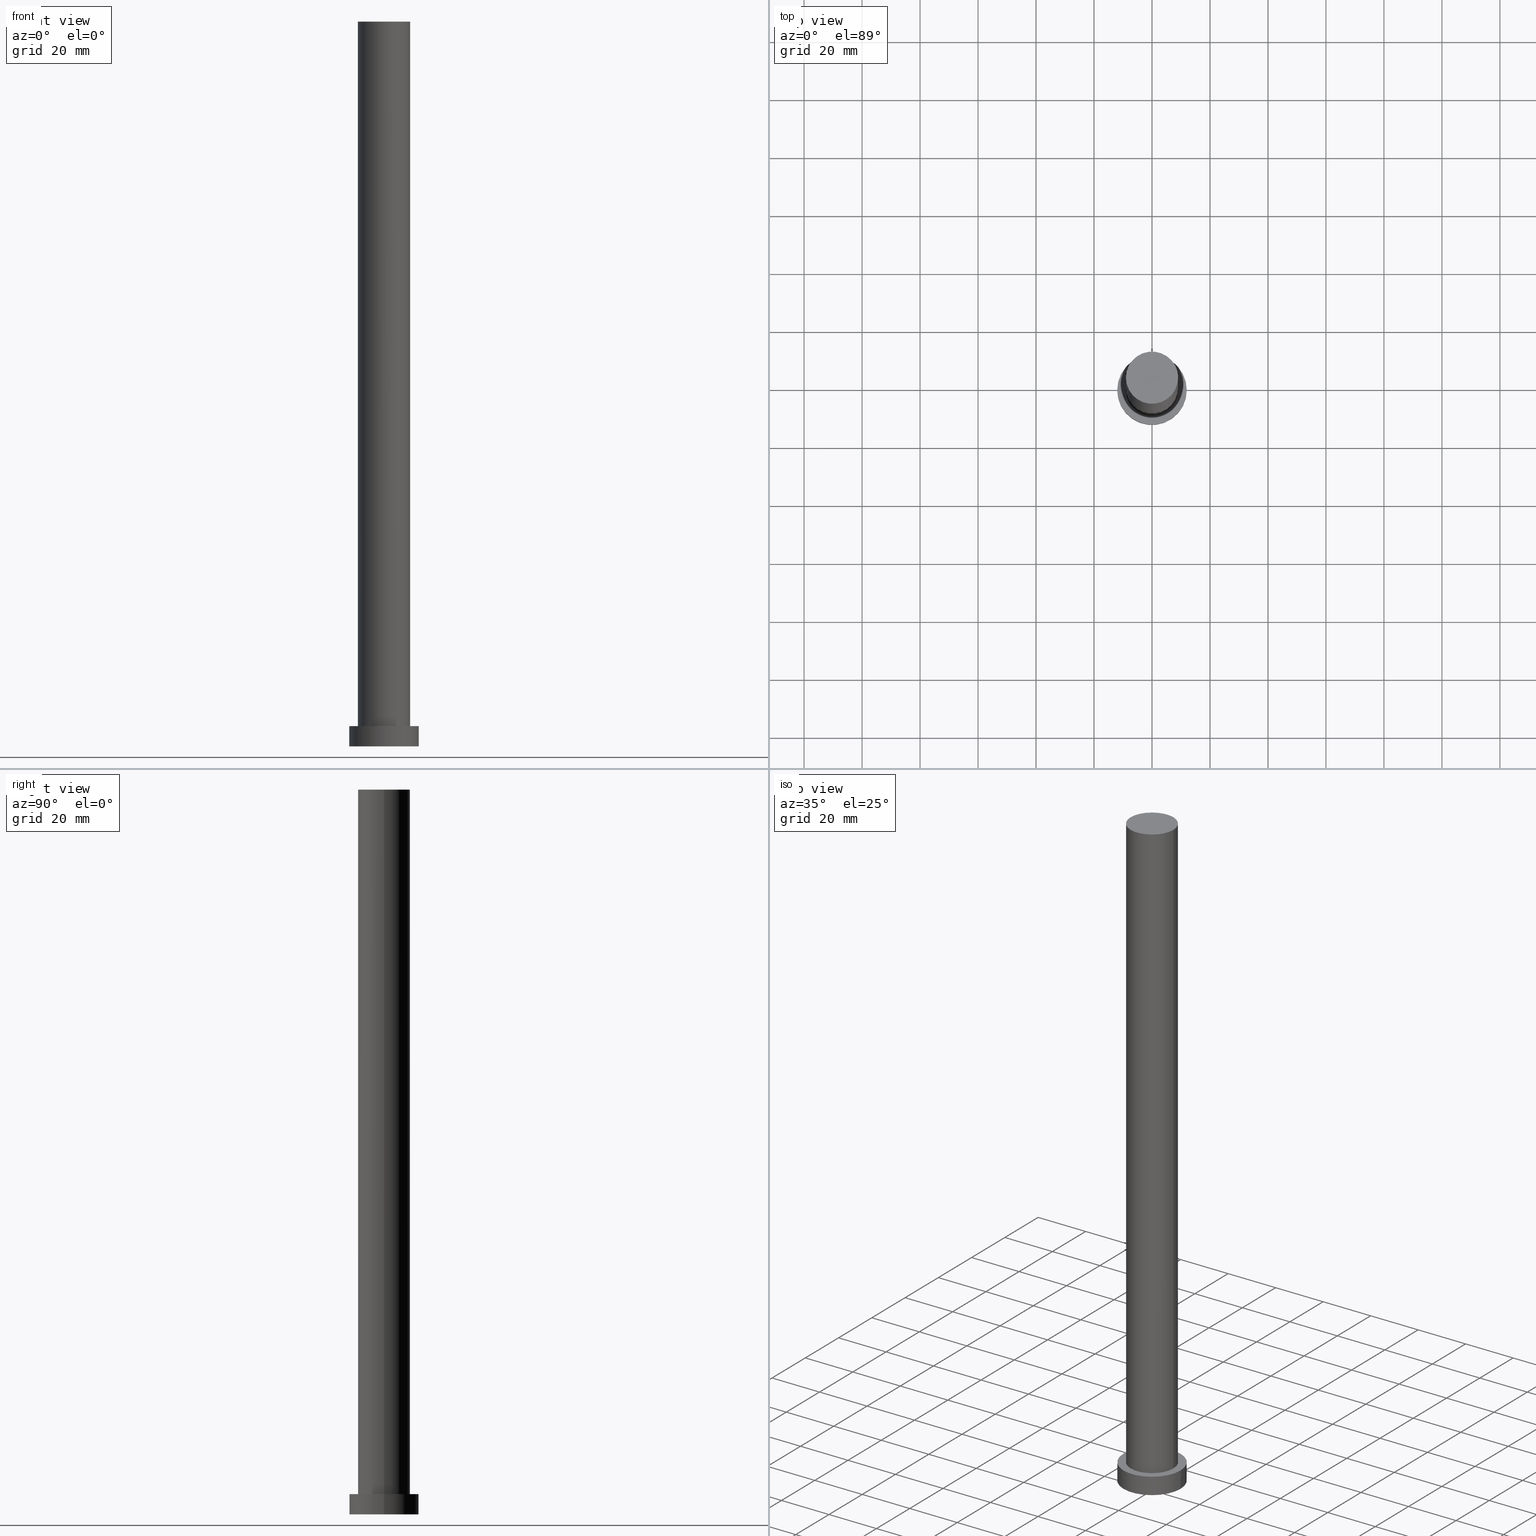
[diagram: canonical four-view strip — front | top / right | iso, engineering-drawing reading convention]
A machine part, canonical four-view strip (front | top / right | iso — engineering-drawing reading convention). The complete STEP part file that produces these views, byte-faithful:
ISO-10303-21;
HEADER;
FILE_DESCRIPTION (( 'STEP AP203' ),
    '1' );
FILE_NAME ('8189.STEP',
    '2023-02-13T07:50:30',
    ( '' ),
    ( '' ),
    'SwSTEP 2.0',
    'SolidWorks 2019',
    '' );
FILE_SCHEMA (( 'CONFIG_CONTROL_DESIGN' ));
ENDSEC;

DATA;
#1 = EDGE_CURVE ( 'NONE', #15, #238, #222, .T. ) ;
#2 = APPROVAL_PERSON_ORGANIZATION ( #8, #6, #246 ) ;
#3 = CARTESIAN_POINT ( 'NONE',  ( 0.000000000000000000, 0.000000000000000000, 250.0000000000000000 ) ) ;
#4 = PERSON_AND_ORGANIZATION_ROLE ( 'design_owner' ) ;
#5 = LOCAL_TIME ( 8, 50, 30.00000000000000000, #71 ) ;
#6 = APPROVAL ( #91, 'NEUR�EN�' ) ;
#7 = DIRECTION ( 'NONE',  ( 1.000000000000000000, 0.000000000000000000, 0.000000000000000000 ) ) ;
#8 = PERSON_AND_ORGANIZATION ( #151, #139 ) ;
#9 = EDGE_CURVE ( 'NONE', #137, #112, #119, .T. ) ;
#10 = LOCAL_TIME ( 8, 50, 30.00000000000000000, #217 ) ;
#11 = CALENDAR_DATE ( 2023, 13, 2 ) ;
#12 = CIRCLE ( 'NONE', #244, 12.00000000000000178 ) ;
#13 = COORDINATED_UNIVERSAL_TIME_OFFSET ( 1, 0, .AHEAD. ) ;
#14 = PRODUCT_DEFINITION ( 'NEZN�M�', '', #156, #203 ) ;
#15 = VERTEX_POINT ( 'NONE', #68 ) ;
#16 = CIRCLE ( 'NONE', #204, 9.000000000000000000 ) ;
#17 = EDGE_CURVE ( 'NONE', #15, #94, #227, .T. ) ;
#18 = APPLICATION_CONTEXT ( 'configuration controlled 3d designs of mechanical parts and assemblies' ) ;
#19 = AXIS2_PLACEMENT_3D ( 'NONE', #149, #211, #30 ) ;
#20 = CC_DESIGN_PERSON_AND_ORGANIZATION_ASSIGNMENT ( #76, #37, ( #156 ) ) ;
#21 = VERTEX_POINT ( 'NONE', #54 ) ;
#22 = DIRECTION ( 'NONE',  ( 0.000000000000000000, 0.000000000000000000, 1.000000000000000000 ) ) ;
#23 = VERTEX_POINT ( 'NONE', #27 ) ;
#24 = VECTOR ( 'NONE', #240, 1000.000000000000000 ) ;
#25 = CARTESIAN_POINT ( 'NONE',  ( -12.00000000000000178, 0.000000000000000000, 7.000000000000000000 ) ) ;
#26 = DIRECTION ( 'NONE',  ( 0.000000000000000000, 0.000000000000000000, 1.000000000000000000 ) ) ;
#27 = CARTESIAN_POINT ( 'NONE',  ( 12.00000000000000178, 1.469576158976824144E-15, 0.000000000000000000 ) ) ;
#28 =( NAMED_UNIT ( * ) SI_UNIT ( $, .STERADIAN. ) SOLID_ANGLE_UNIT ( ) );
#29 = DIRECTION ( 'NONE',  ( -0.000000000000000000, -0.000000000000000000, -1.000000000000000000 ) ) ;
#30 = DIRECTION ( 'NONE',  ( -1.000000000000000000, 0.000000000000000000, 0.000000000000000000 ) ) ;
#31 = DIRECTION ( 'NONE',  ( -0.000000000000000000, -0.000000000000000000, -1.000000000000000000 ) ) ;
#32 = ORIENTED_EDGE ( 'NONE', *, *, #125, .T. ) ;
#33 = CARTESIAN_POINT ( 'NONE',  ( 0.000000000000000000, 0.000000000000000000, 7.000000000000000000 ) ) ;
#34 = DIRECTION ( 'NONE',  ( 1.000000000000000000, 0.000000000000000000, 0.000000000000000000 ) ) ;
#35 = ADVANCED_FACE ( 'NONE', ( #230 ), #52, .T. ) ;
#36 = PERSON_AND_ORGANIZATION_ROLE ( 'classification_officer' ) ;
#37 = PERSON_AND_ORGANIZATION_ROLE ( 'design_supplier' ) ;
#38 = CC_DESIGN_PERSON_AND_ORGANIZATION_ASSIGNMENT ( #179, #221, ( #156 ) ) ;
#39 = PERSON_AND_ORGANIZATION_ROLE ( 'creator' ) ;
#40 = DIRECTION ( 'NONE',  ( 0.000000000000000000, 0.000000000000000000, 1.000000000000000000 ) ) ;
#41 = AXIS2_PLACEMENT_3D ( 'NONE', #170, #73, #34 ) ;
#42 = DATE_AND_TIME ( #75, #160 ) ;
#43 = ORIENTED_EDGE ( 'NONE', *, *, #1, .F. ) ;
#44 = ORIENTED_EDGE ( 'NONE', *, *, #62, .F. ) ;
#45 = CC_DESIGN_APPROVAL ( #80, ( #156 ) ) ;
#46 = ORIENTED_EDGE ( 'NONE', *, *, #165, .T. ) ;
#47 = EDGE_LOOP ( 'NONE', ( #121, #243, #248, #32 ) ) ;
#48 = ADVANCED_FACE ( 'NONE', ( #187 ), #162, .T. ) ;
#49 = AXIS2_PLACEMENT_3D ( 'NONE', #131, #29, #106 ) ;
#50 = DIRECTION ( 'NONE',  ( -0.000000000000000000, -0.000000000000000000, -1.000000000000000000 ) ) ;
#51 = APPROVAL_PERSON_ORGANIZATION ( #202, #178, #96 ) ;
#52 = CYLINDRICAL_SURFACE ( 'NONE', #49, 9.000000000000000000 ) ;
#53 = FACE_OUTER_BOUND ( 'NONE', #186, .T. ) ;
#54 = CARTESIAN_POINT ( 'NONE',  ( -9.000000000000000000, 0.000000000000000000, 250.0000000000000000 ) ) ;
#55 = CC_DESIGN_DATE_AND_TIME_ASSIGNMENT ( #42, #200, ( #157 ) ) ;
#56 = DATE_AND_TIME ( #233, #5 ) ;
#57 = FACE_OUTER_BOUND ( 'NONE', #201, .T. ) ;
#58 = CARTESIAN_POINT ( 'NONE',  ( 9.000000000000000000, 1.102182119232617714E-15, 7.000000000000000000 ) ) ;
#59 = AXIS2_PLACEMENT_3D ( 'NONE', #98, #124, #64 ) ;
#60 = EDGE_CURVE ( 'NONE', #238, #23, #143, .T. ) ;
#61 = PERSON_AND_ORGANIZATION ( #151, #139 ) ;
#62 = EDGE_CURVE ( 'NONE', #23, #94, #175, .T. ) ;
#63 = CARTESIAN_POINT ( 'NONE',  ( 9.000000000000000000, 1.102182119232617714E-15, 250.0000000000000000 ) ) ;
#64 = DIRECTION ( 'NONE',  ( -1.000000000000000000, 0.000000000000000000, 0.000000000000000000 ) ) ;
#65 = ORIENTED_EDGE ( 'NONE', *, *, #9, .F. ) ;
#66 = ADVANCED_FACE ( 'NONE', ( #81 ), #159, .T. ) ;
#67 = ORIENTED_EDGE ( 'NONE', *, *, #17, .F. ) ;
#68 = CARTESIAN_POINT ( 'NONE',  ( -12.00000000000000178, 0.000000000000000000, 7.000000000000000000 ) ) ;
#69 = APPLICATION_PROTOCOL_DEFINITION ( 'international standard', 'config_control_design', 1994, #18 ) ;
#70 = CARTESIAN_POINT ( 'NONE',  ( 0.000000000000000000, 0.000000000000000000, 7.000000000000000000 ) ) ;
#71 = COORDINATED_UNIVERSAL_TIME_OFFSET ( 1, 0, .AHEAD. ) ;
#72 = CARTESIAN_POINT ( 'NONE',  ( 12.00000000000000178, 1.469576158976824144E-15, 7.000000000000000000 ) ) ;
#73 = DIRECTION ( 'NONE',  ( 0.000000000000000000, 0.000000000000000000, 1.000000000000000000 ) ) ;
#74 = AXIS2_PLACEMENT_3D ( 'NONE', #153, #26, #135 ) ;
#75 = CALENDAR_DATE ( 2023, 13, 2 ) ;
#76 = PERSON_AND_ORGANIZATION ( #151, #139 ) ;
#77 = SHAPE_DEFINITION_REPRESENTATION ( #114, #235 ) ;
#78 = ORIENTED_EDGE ( 'NONE', *, *, #180, .F. ) ;
#79 = DIRECTION ( 'NONE',  ( 0.000000000000000000, 0.000000000000000000, 1.000000000000000000 ) ) ;
#80 = APPROVAL ( #174, 'NEUR�EN�' ) ;
#81 = FACE_OUTER_BOUND ( 'NONE', #104, .T. ) ;
#82 = DIRECTION ( 'NONE',  ( 1.000000000000000000, 0.000000000000000000, 0.000000000000000000 ) ) ;
#83 = DIRECTION ( 'NONE',  ( 1.000000000000000000, 0.000000000000000000, 0.000000000000000000 ) ) ;
#84 = FACE_BOUND ( 'NONE', #107, .T. ) ;
#85 = EDGE_CURVE ( 'NONE', #238, #15, #12, .T. ) ;
#86 = CYLINDRICAL_SURFACE ( 'NONE', #59, 12.00000000000000178 ) ;
#87 = CARTESIAN_POINT ( 'NONE',  ( -9.000000000000000000, 0.000000000000000000, 7.000000000000000000 ) ) ;
#88 = AXIS2_PLACEMENT_3D ( 'NONE', #250, #150, #147 ) ;
#89 =( LENGTH_UNIT ( ) NAMED_UNIT ( * ) SI_UNIT ( .MILLI., .METRE. ) );
#90 = FACE_OUTER_BOUND ( 'NONE', #118, .T. ) ;
#91 = APPROVAL_STATUS ( 'not_yet_approved' ) ;
#92 = DIRECTION ( 'NONE',  ( -0.000000000000000000, -0.000000000000000000, -1.000000000000000000 ) ) ;
#93 = ADVANCED_FACE ( 'NONE', ( #90 ), #86, .T. ) ;
#94 = VERTEX_POINT ( 'NONE', #239 ) ;
#95 = AXIS2_PLACEMENT_3D ( 'NONE', #242, #92, #234 ) ;
#96 = APPROVAL_ROLE ( '' ) ;
#97 = CC_DESIGN_SECURITY_CLASSIFICATION ( #157, ( #156 ) ) ;
#98 = CARTESIAN_POINT ( 'NONE',  ( 0.000000000000000000, 0.000000000000000000, 7.000000000000000000 ) ) ;
#99 = VERTEX_POINT ( 'NONE', #63 ) ;
#100 = EDGE_CURVE ( 'NONE', #21, #99, #16, .T. ) ;
#101 = ORIENTED_EDGE ( 'NONE', *, *, #125, .F. ) ;
#102 = DIRECTION ( 'NONE',  ( 0.000000000000000000, 0.000000000000000000, 1.000000000000000000 ) ) ;
#103 = DIRECTION ( 'NONE',  ( 1.000000000000000000, 0.000000000000000000, 0.000000000000000000 ) ) ;
#104 = EDGE_LOOP ( 'NONE', ( #226, #183, #133, #67 ) ) ;
#105 = PLANE ( 'NONE',  #88 ) ;
#106 = DIRECTION ( 'NONE',  ( -1.000000000000000000, 0.000000000000000000, 0.000000000000000000 ) ) ;
#107 = EDGE_LOOP ( 'NONE', ( #101, #65 ) ) ;
#108 = MANIFOLD_SOLID_BREP ( 'P�idat vysunut�m3', #216 ) ;
#109 = ORIENTED_EDGE ( 'NONE', *, *, #229, .F. ) ;
#110 =( NAMED_UNIT ( * ) PLANE_ANGLE_UNIT ( ) SI_UNIT ( $, .RADIAN. ) );
#111 = ADVANCED_FACE ( 'NONE', ( #84, #57 ), #214, .T. ) ;
#112 = VERTEX_POINT ( 'NONE', #87 ) ;
#113 = PERSON_AND_ORGANIZATION ( #151, #139 ) ;
#114 = PRODUCT_DEFINITION_SHAPE ( 'NONE', 'NONE',  #14 ) ;
#115 = APPROVAL_ROLE ( '' ) ;
#116 = CC_DESIGN_PERSON_AND_ORGANIZATION_ASSIGNMENT ( #154, #36, ( #157 ) ) ;
#117 = CALENDAR_DATE ( 2023, 13, 2 ) ;
#118 = EDGE_LOOP ( 'NONE', ( #130, #43, #142, #171 ) ) ;
#119 = CIRCLE ( 'NONE', #224, 9.000000000000000000 ) ;
#120 = DATE_TIME_ROLE ( 'creation_date' ) ;
#121 = ORIENTED_EDGE ( 'NONE', *, *, #165, .F. ) ;
#122 = AXIS2_PLACEMENT_3D ( 'NONE', #208, #164, #231 ) ;
#123 = SECURITY_CLASSIFICATION_LEVEL ( 'unclassified' ) ;
#124 = DIRECTION ( 'NONE',  ( -0.000000000000000000, -0.000000000000000000, -1.000000000000000000 ) ) ;
#125 = EDGE_CURVE ( 'NONE', #112, #137, #152, .T. ) ;
#126 = ORIENTED_EDGE ( 'NONE', *, *, #85, .T. ) ;
#127 = CARTESIAN_POINT ( 'NONE',  ( 0.000000000000000000, 0.000000000000000000, 7.000000000000000000 ) ) ;
#128 = FACE_OUTER_BOUND ( 'NONE', #232, .T. ) ;
#129 = MECHANICAL_CONTEXT ( 'NONE', #18, 'mechanical' ) ;
#130 = ORIENTED_EDGE ( 'NONE', *, *, #60, .F. ) ;
#131 = CARTESIAN_POINT ( 'NONE',  ( 0.000000000000000000, 0.000000000000000000, 250.0000000000000000 ) ) ;
#132 = CC_DESIGN_PERSON_AND_ORGANIZATION_ASSIGNMENT ( #191, #4, ( #196 ) ) ;
#133 = ORIENTED_EDGE ( 'NONE', *, *, #62, .T. ) ;
#134 = APPLICATION_PROTOCOL_DEFINITION ( 'international standard', 'config_control_design', 1994, #136 ) ;
#135 = DIRECTION ( 'NONE',  ( 1.000000000000000000, 0.000000000000000000, 0.000000000000000000 ) ) ;
#136 = APPLICATION_CONTEXT ( 'configuration controlled 3d designs of mechanical parts and assemblies' ) ;
#137 = VERTEX_POINT ( 'NONE', #58 ) ;
#138 = COORDINATED_UNIVERSAL_TIME_OFFSET ( 1, 0, .AHEAD. ) ;
#139 = ORGANIZATION ( 'NEUR�EN�', 'NEUR�EN�', '' ) ;
#140 = DATE_AND_TIME ( #11, #10 ) ;
#141 = DIRECTION ( 'NONE',  ( 0.000000000000000000, 0.000000000000000000, 1.000000000000000000 ) ) ;
#142 = ORIENTED_EDGE ( 'NONE', *, *, #17, .T. ) ;
#143 = LINE ( 'NONE', #158, #24 ) ;
#144 = VECTOR ( 'NONE', #209, 1000.000000000000000 ) ;
#145 = CC_DESIGN_APPROVAL ( #178, ( #157 ) ) ;
#146 = EDGE_LOOP ( 'NONE', ( #241, #188 ) ) ;
#147 = DIRECTION ( 'NONE',  ( 1.000000000000000000, 0.000000000000000000, -0.000000000000000000 ) ) ;
#148 = ORIENTED_EDGE ( 'NONE', *, *, #9, .T. ) ;
#149 = CARTESIAN_POINT ( 'NONE',  ( 0.000000000000000000, 0.000000000000000000, 250.0000000000000000 ) ) ;
#150 = DIRECTION ( 'NONE',  ( 0.000000000000000000, 0.000000000000000000, 1.000000000000000000 ) ) ;
#151 = PERSON ( 'NEUR�EN�', 'NEUR�EN�', 'NEUR�EN�', ('NEUR�EN�'), ('NEUR�EN�'), ('NEUR�EN�') ) ;
#152 = CIRCLE ( 'NONE', #218, 9.000000000000000000 ) ;
#153 = CARTESIAN_POINT ( 'NONE',  ( 0.000000000000000000, 0.000000000000000000, 0.000000000000000000 ) ) ;
#154 = PERSON_AND_ORGANIZATION ( #151, #139 ) ;
#155 = APPROVAL_DATE_TIME ( #140, #80 ) ;
#156 = PRODUCT_DEFINITION_FORMATION_WITH_SPECIFIED_SOURCE ( 'LIBOVOLN�', '', #196, .NOT_KNOWN. ) ;
#157 = SECURITY_CLASSIFICATION ( '', '', #123 ) ;
#158 = CARTESIAN_POINT ( 'NONE',  ( 12.00000000000000178, 1.469576158976824144E-15, 7.000000000000000000 ) ) ;
#159 = CYLINDRICAL_SURFACE ( 'NONE', #95, 12.00000000000000178 ) ;
#160 = LOCAL_TIME ( 8, 50, 30.00000000000000000, #13 ) ;
#161 = DIRECTION ( 'NONE',  ( 1.000000000000000000, 0.000000000000000000, 0.000000000000000000 ) ) ;
#162 = PLANE ( 'NONE',  #198 ) ;
#163 = CARTESIAN_POINT ( 'NONE',  ( 0.000000000000000000, 0.000000000000000000, 7.000000000000000000 ) ) ;
#164 = DIRECTION ( 'NONE',  ( 0.000000000000000000, 0.000000000000000000, 1.000000000000000000 ) ) ;
#165 = EDGE_CURVE ( 'NONE', #99, #137, #167, .T. ) ;
#166 = VECTOR ( 'NONE', #31, 1000.000000000000000 ) ;
#167 = LINE ( 'NONE', #193, #206 ) ;
#168 = LINE ( 'NONE', #215, #166 ) ;
#169 = CYLINDRICAL_SURFACE ( 'NONE', #19, 9.000000000000000000 ) ;
#170 = CARTESIAN_POINT ( 'NONE',  ( 0.000000000000000000, 0.000000000000000000, 250.0000000000000000 ) ) ;
#171 = ORIENTED_EDGE ( 'NONE', *, *, #180, .T. ) ;
#172 = ADVANCED_FACE ( 'NONE', ( #53 ), #169, .T. ) ;
#173 = UNCERTAINTY_MEASURE_WITH_UNIT (LENGTH_MEASURE( 1.000000000000000082E-05 ), #89, 'distance_accuracy_value', 'NONE');
#174 = APPROVAL_STATUS ( 'not_yet_approved' ) ;
#175 = CIRCLE ( 'NONE', #228, 12.00000000000000178 ) ;
#176 = COORDINATED_UNIVERSAL_TIME_OFFSET ( 1, 0, .AHEAD. ) ;
#177 = AXIS2_PLACEMENT_3D ( 'NONE', #127, #40, #197 ) ;
#178 = APPROVAL ( #251, 'NEUR�EN�' ) ;
#179 = PERSON_AND_ORGANIZATION ( #151, #139 ) ;
#180 = EDGE_CURVE ( 'NONE', #94, #23, #185, .T. ) ;
#181 = DIRECTION ( 'NONE',  ( 1.000000000000000000, 0.000000000000000000, -0.000000000000000000 ) ) ;
#182 = PRODUCT_RELATED_PRODUCT_CATEGORY ( 'detail', '', ( #196 ) ) ;
#183 = ORIENTED_EDGE ( 'NONE', *, *, #60, .T. ) ;
#184 = DIRECTION ( 'NONE',  ( 0.000000000000000000, 0.000000000000000000, 1.000000000000000000 ) ) ;
#185 = CIRCLE ( 'NONE', #74, 12.00000000000000178 ) ;
#186 = EDGE_LOOP ( 'NONE', ( #109, #46, #148, #194 ) ) ;
#187 = FACE_OUTER_BOUND ( 'NONE', #146, .T. ) ;
#188 = ORIENTED_EDGE ( 'NONE', *, *, #229, .T. ) ;
#189 = DIRECTION ( 'NONE',  ( 0.000000000000000000, 0.000000000000000000, 1.000000000000000000 ) ) ;
#190 = EDGE_CURVE ( 'NONE', #21, #112, #168, .T. ) ;
#191 = PERSON_AND_ORGANIZATION ( #151, #139 ) ;
#192 = LOCAL_TIME ( 8, 50, 30.00000000000000000, #176 ) ;
#193 = CARTESIAN_POINT ( 'NONE',  ( 9.000000000000000000, 1.102182119232617714E-15, 250.0000000000000000 ) ) ;
#194 = ORIENTED_EDGE ( 'NONE', *, *, #190, .F. ) ;
#195 = DIRECTION ( 'NONE',  ( 0.000000000000000000, 0.000000000000000000, 1.000000000000000000 ) ) ;
#196 = PRODUCT ( '8189', '8189', '', ( #129 ) ) ;
#197 = DIRECTION ( 'NONE',  ( 1.000000000000000000, 0.000000000000000000, -0.000000000000000000 ) ) ;
#198 = AXIS2_PLACEMENT_3D ( 'NONE', #3, #141, #181 ) ;
#199 = APPROVAL_DATE_TIME ( #253, #178 ) ;
#200 = DATE_TIME_ROLE ( 'classification_date' ) ;
#201 = EDGE_LOOP ( 'NONE', ( #207, #126 ) ) ;
#202 = PERSON_AND_ORGANIZATION ( #151, #139 ) ;
#203 = DESIGN_CONTEXT ( 'detailed design', #136, 'design' ) ;
#204 = AXIS2_PLACEMENT_3D ( 'NONE', #254, #79, #7 ) ;
#205 = CARTESIAN_POINT ( 'NONE',  ( 0.000000000000000000, 0.000000000000000000, 0.000000000000000000 ) ) ;
#206 = VECTOR ( 'NONE', #50, 1000.000000000000000 ) ;
#207 = ORIENTED_EDGE ( 'NONE', *, *, #1, .T. ) ;
#208 = CARTESIAN_POINT ( 'NONE',  ( 0.000000000000000000, 0.000000000000000000, 0.000000000000000000 ) ) ;
#209 = DIRECTION ( 'NONE',  ( -0.000000000000000000, -0.000000000000000000, -1.000000000000000000 ) ) ;
#210 = CARTESIAN_POINT ( 'NONE',  ( 0.000000000000000000, 0.000000000000000000, 7.000000000000000000 ) ) ;
#211 = DIRECTION ( 'NONE',  ( -0.000000000000000000, -0.000000000000000000, -1.000000000000000000 ) ) ;
#212 =( GEOMETRIC_REPRESENTATION_CONTEXT ( 3 ) GLOBAL_UNCERTAINTY_ASSIGNED_CONTEXT ( ( #173 ) ) GLOBAL_UNIT_ASSIGNED_CONTEXT ( ( #89, #110, #28 ) ) REPRESENTATION_CONTEXT ( 'NONE', 'WORKASPACE' ) );
#213 = APPROVAL_DATE_TIME ( #56, #6 ) ;
#214 = PLANE ( 'NONE',  #177 ) ;
#215 = CARTESIAN_POINT ( 'NONE',  ( -9.000000000000000000, 0.000000000000000000, 250.0000000000000000 ) ) ;
#216 = CLOSED_SHELL ( 'NONE', ( #172, #66, #93, #111, #223, #35, #48 ) ) ;
#217 = COORDINATED_UNIVERSAL_TIME_OFFSET ( 1, 0, .AHEAD. ) ;
#218 = AXIS2_PLACEMENT_3D ( 'NONE', #210, #189, #247 ) ;
#219 = LOCAL_TIME ( 8, 50, 30.00000000000000000, #138 ) ;
#220 = CALENDAR_DATE ( 2023, 13, 2 ) ;
#221 = PERSON_AND_ORGANIZATION_ROLE ( 'creator' ) ;
#222 = CIRCLE ( 'NONE', #249, 12.00000000000000178 ) ;
#223 = ADVANCED_FACE ( 'NONE', ( #128 ), #105, .F. ) ;
#224 = AXIS2_PLACEMENT_3D ( 'NONE', #163, #184, #83 ) ;
#225 = CC_DESIGN_PERSON_AND_ORGANIZATION_ASSIGNMENT ( #113, #39, ( #14 ) ) ;
#226 = ORIENTED_EDGE ( 'NONE', *, *, #85, .F. ) ;
#227 = LINE ( 'NONE', #25, #144 ) ;
#228 = AXIS2_PLACEMENT_3D ( 'NONE', #205, #102, #82 ) ;
#229 = EDGE_CURVE ( 'NONE', #99, #21, #236, .T. ) ;
#230 = FACE_OUTER_BOUND ( 'NONE', #47, .T. ) ;
#231 = DIRECTION ( 'NONE',  ( 1.000000000000000000, 0.000000000000000000, 0.000000000000000000 ) ) ;
#232 = EDGE_LOOP ( 'NONE', ( #78, #44 ) ) ;
#233 = CALENDAR_DATE ( 2023, 13, 2 ) ;
#234 = DIRECTION ( 'NONE',  ( -1.000000000000000000, 0.000000000000000000, 0.000000000000000000 ) ) ;
#235 = ADVANCED_BREP_SHAPE_REPRESENTATION ( '8189', ( #108, #122 ), #212 ) ;
#236 = CIRCLE ( 'NONE', #41, 9.000000000000000000 ) ;
#237 = DATE_AND_TIME ( #117, #219 ) ;
#238 = VERTEX_POINT ( 'NONE', #72 ) ;
#239 = CARTESIAN_POINT ( 'NONE',  ( -12.00000000000000178, 0.000000000000000000, 0.000000000000000000 ) ) ;
#240 = DIRECTION ( 'NONE',  ( -0.000000000000000000, -0.000000000000000000, -1.000000000000000000 ) ) ;
#241 = ORIENTED_EDGE ( 'NONE', *, *, #100, .T. ) ;
#242 = CARTESIAN_POINT ( 'NONE',  ( 0.000000000000000000, 0.000000000000000000, 7.000000000000000000 ) ) ;
#243 = ORIENTED_EDGE ( 'NONE', *, *, #100, .F. ) ;
#244 = AXIS2_PLACEMENT_3D ( 'NONE', #33, #195, #161 ) ;
#245 = APPROVAL_PERSON_ORGANIZATION ( #61, #80, #115 ) ;
#246 = APPROVAL_ROLE ( '' ) ;
#247 = DIRECTION ( 'NONE',  ( 1.000000000000000000, 0.000000000000000000, 0.000000000000000000 ) ) ;
#248 = ORIENTED_EDGE ( 'NONE', *, *, #190, .T. ) ;
#249 = AXIS2_PLACEMENT_3D ( 'NONE', #70, #22, #103 ) ;
#250 = CARTESIAN_POINT ( 'NONE',  ( 0.000000000000000000, 0.000000000000000000, 0.000000000000000000 ) ) ;
#251 = APPROVAL_STATUS ( 'not_yet_approved' ) ;
#252 = CC_DESIGN_APPROVAL ( #6, ( #14 ) ) ;
#253 = DATE_AND_TIME ( #220, #192 ) ;
#254 = CARTESIAN_POINT ( 'NONE',  ( 0.000000000000000000, 0.000000000000000000, 250.0000000000000000 ) ) ;
#255 = CC_DESIGN_DATE_AND_TIME_ASSIGNMENT ( #237, #120, ( #14 ) ) ;
ENDSEC;
END-ISO-10303-21;
